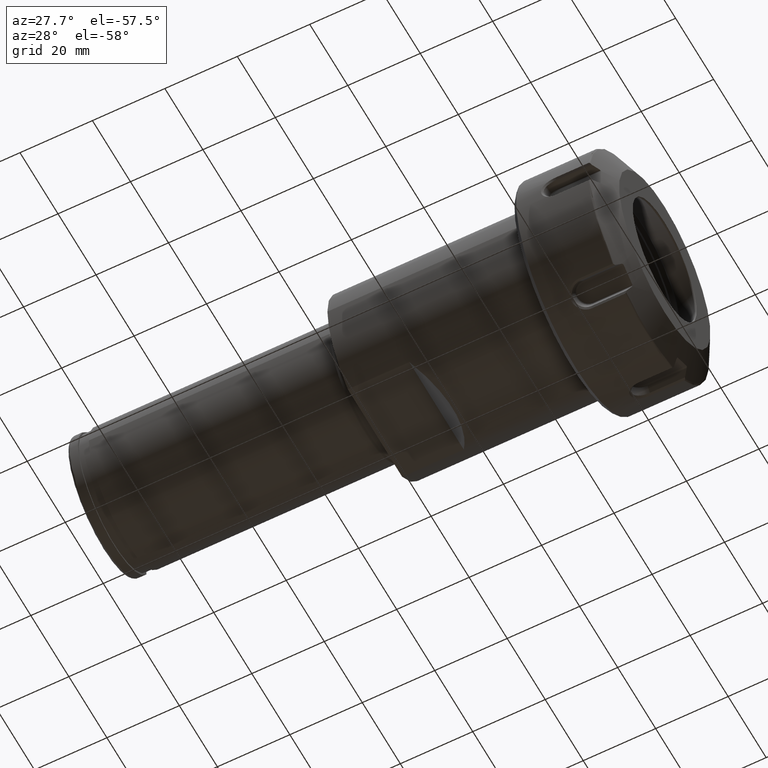
[diagram: clean part render]
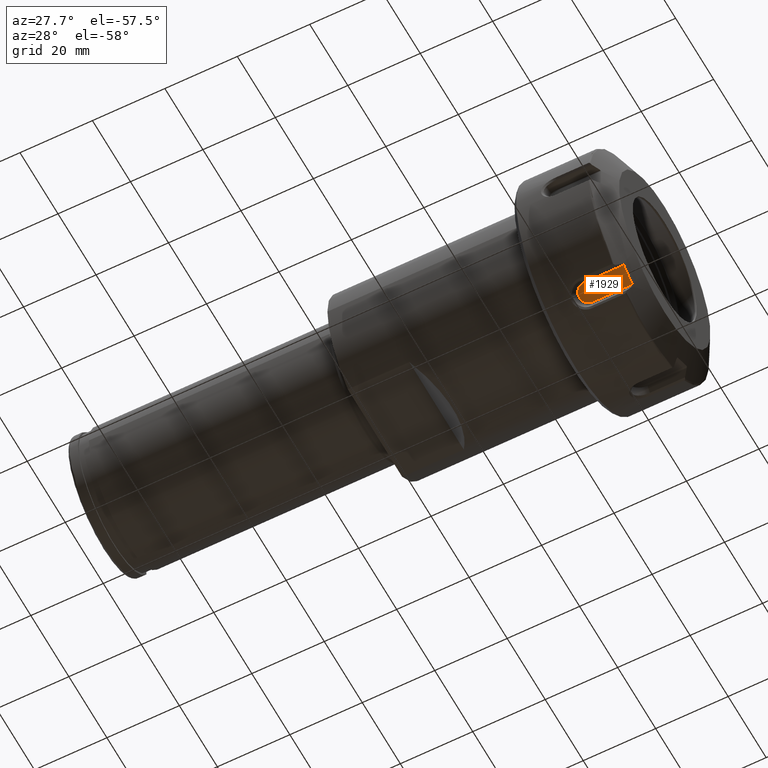
[diagram: same view with one face highlighted and labeled with its STEP entity id]
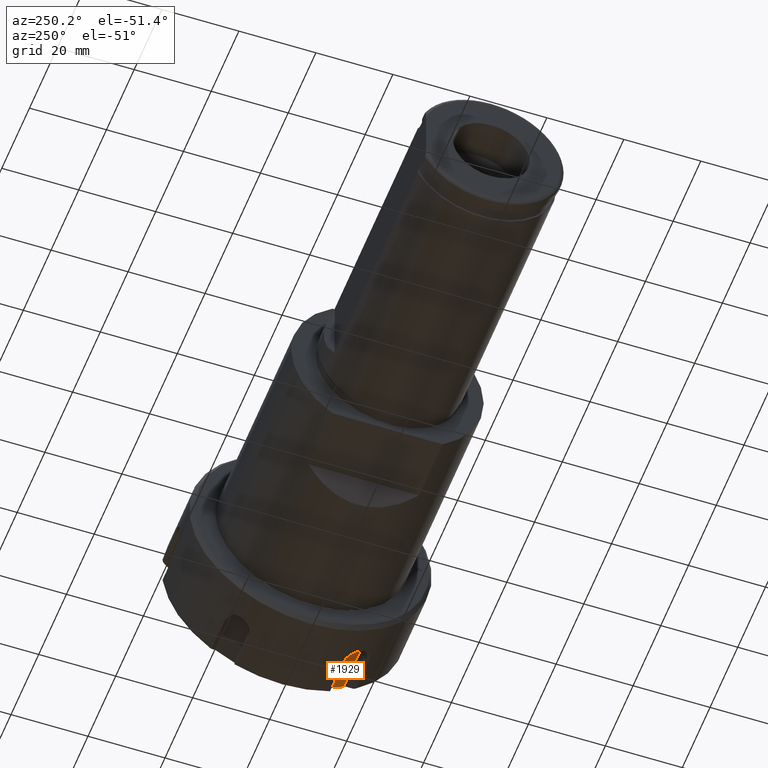
[diagram: same view with one face highlighted and labeled with its STEP entity id]
A machine part, auxiliary view. The second image highlights one B-rep face of the part: STEP entity #1929.
A second angle (auxiliary view) of the same face is appended — the face is thin or edge-on in the first view.
In plain terms, the highlighted planar face has unit normal (0, 0.5, 0.866).
Its self-contained STEP definition (entity closure, byte-faithful):
#174=B_SPLINE_CURVE_WITH_KNOTS('',3,(#3250,#3251,#3252,#3253,#3254,#3255),
 .UNSPECIFIED.,.F.,.F.,(4,1,1,4),(0.,0.3333333333333,0.6666666666667,1.),
 .UNSPECIFIED.);
#333=CIRCLE('',#2196,2.580450184411);
#439=FACE_OUTER_BOUND('',#560,.T.);
#560=EDGE_LOOP('',(#1745,#1746,#1747,#1748));
#676=LINE('',#4278,#790);
#677=LINE('',#4283,#791);
#790=VECTOR('',#2682,11.03461556535);
#791=VECTOR('',#2689,11.03461556535);
#891=VERTEX_POINT('',#3238);
#892=VERTEX_POINT('',#3249);
#964=VERTEX_POINT('',#4277);
#965=VERTEX_POINT('',#4281);
#1086=EDGE_CURVE('',#892,#891,#174,.T.);
#1226=EDGE_CURVE('',#964,#891,#676,.T.);
#1228=EDGE_CURVE('',#965,#964,#333,.T.);
#1229=EDGE_CURVE('',#892,#965,#677,.T.);
#1745=ORIENTED_EDGE('',*,*,#1226,.F.);
#1746=ORIENTED_EDGE('',*,*,#1228,.F.);
#1747=ORIENTED_EDGE('',*,*,#1229,.F.);
#1748=ORIENTED_EDGE('',*,*,#1086,.T.);
#1823=PLANE('',#2195);
#1929=ADVANCED_FACE('',(#439),#1823,.F.);
#2195=AXIS2_PLACEMENT_3D('',#4280,#2685,#2686);
#2196=AXIS2_PLACEMENT_3D('',#4282,#2687,#2688);
#2682=DIRECTION('',(1.,0.,0.));
#2685=DIRECTION('center_axis',(0.,0.500000000000017,0.866025403784429));
#2686=DIRECTION('ref_axis',(0.,-0.866025403784429,0.500000000000017));
#2687=DIRECTION('center_axis',(0.,0.500000000000017,0.866025403784429));
#2688=DIRECTION('ref_axis',(0.,0.866025403784429,-0.500000000000017));
#2689=DIRECTION('',(-1.,0.,0.));
#3238=CARTESIAN_POINT('',(10.08461556535,-16.4847354129,-23.39149891565));
#3249=CARTESIAN_POINT('',(10.08461556535,-12.0152645871,-25.97194910006));
#3250=CARTESIAN_POINT('Ctrl Pts',(10.08461556535,-12.0152645871,-25.97194910006));
#3251=CARTESIAN_POINT('Ctrl Pts',(10.11446714736,-12.51183504657,-25.68525401161));
#3252=CARTESIAN_POINT('Ctrl Pts',(10.15441839857,-13.50499569361,-25.1118524447));
#3253=CARTESIAN_POINT('Ctrl Pts',(10.15441825606,-14.99500980236,-24.25159239792));
#3254=CARTESIAN_POINT('Ctrl Pts',(10.11446700596,-15.98816730562,-23.67819264606));
#3255=CARTESIAN_POINT('Ctrl Pts',(10.08461556535,-16.4847354129,-23.39149891565));
#4277=CARTESIAN_POINT('',(-0.95,-16.4847354129,-23.39149891565));
#4278=CARTESIAN_POINT('',(-0.95,-16.4847354129,-23.39149891565));
#4280=CARTESIAN_POINT('Origin',(0.,-14.25,-24.68172400786));
#4281=CARTESIAN_POINT('',(-0.95,-12.0152645871,-25.97194910006));
#4282=CARTESIAN_POINT('Origin',(-0.95,-14.25,-24.68172400786));
#4283=CARTESIAN_POINT('',(10.08461556535,-12.0152645871,-25.97194910006));